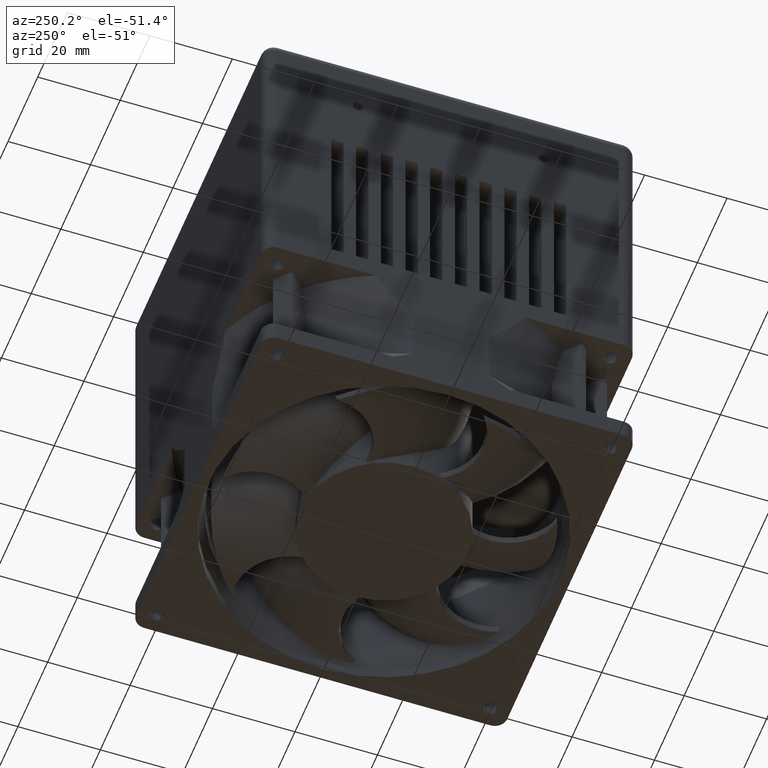
[diagram: clean part render]
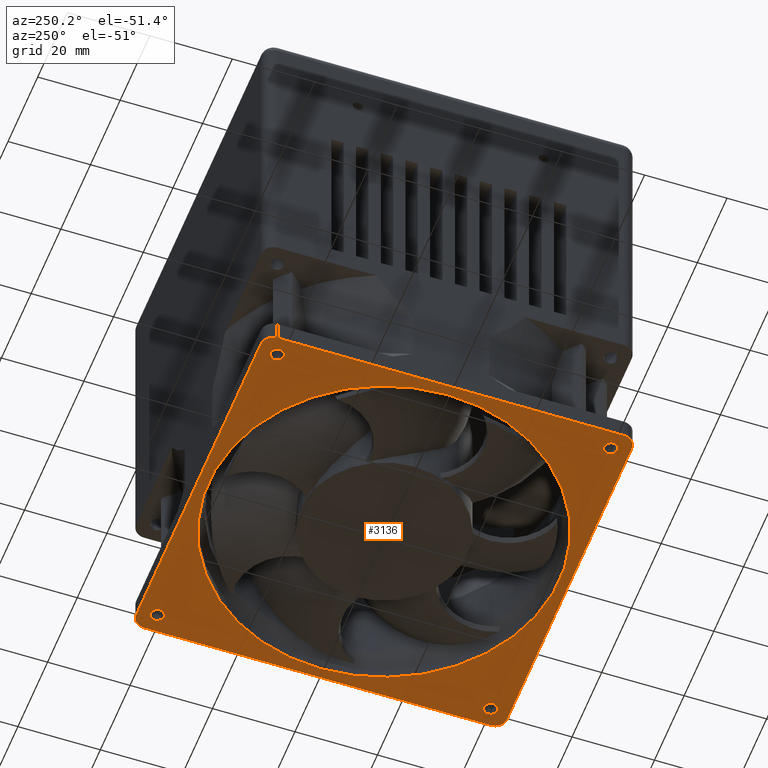
[diagram: same view with one face highlighted and labeled with its STEP entity id]
A machine part, auxiliary view. The second image highlights one B-rep face of the part: STEP entity #3136.
In plain terms, the highlighted planar face has unit normal (0, 0, -1).
Its self-contained STEP definition (entity closure, byte-faithful):
#65 = EDGE_CURVE ( 'NONE', #2853, #3811, #7498, .T. ) ;
#94 = CARTESIAN_POINT ( 'NONE',  ( -44.99999999999998579, -41.99999999999997158, -37.99999999999999289 ) ) ;
#101 = ORIENTED_EDGE ( 'NONE', *, *, #7098, .T. ) ;
#113 = CARTESIAN_POINT ( 'NONE',  ( -42.01564467780267620, 40.41564467780261083, -37.99999999999999289 ) ) ;
#249 = VERTEX_POINT ( 'NONE', #6041 ) ;
#257 = DIRECTION ( 'NONE',  ( -1.000000000000000000, 0.000000000000000000, 0.000000000000000000 ) ) ;
#357 = DIRECTION ( 'NONE',  ( -1.000000000000000000, 0.000000000000000000, 0.000000000000000000 ) ) ;
#387 = DIRECTION ( 'NONE',  ( 0.000000000000000000, 1.000000000000000000, 0.000000000000000000 ) ) ;
#426 = ORIENTED_EDGE ( 'NONE', *, *, #5327, .F. ) ;
#452 = CARTESIAN_POINT ( 'NONE',  ( 42.53170406992085617, 0.000000000000000000, -37.99999999999999289 ) ) ;
#635 = CARTESIAN_POINT ( 'NONE',  ( 40.41564467780034420, 40.41564467780033709, -37.99999999999999289 ) ) ;
#965 = VERTEX_POINT ( 'NONE', #5764 ) ;
#1013 = DIRECTION ( 'NONE',  ( 3.469446951953614189E-18, 0.000000000000000000, -1.000000000000000000 ) ) ;
#1021 = CARTESIAN_POINT ( 'NONE',  ( -44.99999999999998579, -41.99999999999997158, -37.99999999999999289 ) ) ;
#1027 = CIRCLE ( 'NONE', #3929, 1.600000000003189093 ) ;
#1067 = DIRECTION ( 'NONE',  ( -1.000000000000000000, 0.000000000000000000, 0.000000000000000000 ) ) ;
#1080 = AXIS2_PLACEMENT_3D ( 'NONE', #3266, #3344, #2050 ) ;
#1143 = LINE ( 'NONE', #1021, #7741 ) ;
#1200 = CIRCLE ( 'NONE', #5634, 1.599999999999990319 ) ;
#1236 = EDGE_CURVE ( 'NONE', #1762, #249, #7780, .T. ) ;
#1255 = CARTESIAN_POINT ( 'NONE',  ( 44.99999999999999289, -41.99999999999998579, -37.99999999999999289 ) ) ;
#1378 = EDGE_CURVE ( 'NONE', #1999, #7431, #1200, .T. ) ;
#1445 = DIRECTION ( 'NONE',  ( -1.000000000000000000, 0.000000000000000000, 0.000000000000000000 ) ) ;
#1561 = FACE_BOUND ( 'NONE', #5339, .T. ) ;
#1588 = ORIENTED_EDGE ( 'NONE', *, *, #1883, .T. ) ;
#1627 = DIRECTION ( 'NONE',  ( 3.469446951953614189E-18, 0.000000000000000000, -1.000000000000000000 ) ) ;
#1647 = EDGE_CURVE ( 'NONE', #7795, #4630, #6399, .T. ) ;
#1702 = ORIENTED_EDGE ( 'NONE', *, *, #7773, .T. ) ;
#1705 = CARTESIAN_POINT ( 'NONE',  ( -41.99999999999998579, 41.99999999999998579, -37.99999999999999289 ) ) ;
#1753 = CARTESIAN_POINT ( 'NONE',  ( 42.01564467779925138, -40.41564467780034420, -37.99999999999999289 ) ) ;
#1761 = DIRECTION ( 'NONE',  ( -1.000000000000000000, 0.000000000000000000, 0.000000000000000000 ) ) ;
#1762 = VERTEX_POINT ( 'NONE', #1753 ) ;
#1880 = AXIS2_PLACEMENT_3D ( 'NONE', #2833, #3978, #2679 ) ;
#1883 = EDGE_CURVE ( 'NONE', #6444, #5177, #5116, .T. ) ;
#1896 = VERTEX_POINT ( 'NONE', #5630 ) ;
#1980 = EDGE_CURVE ( 'NONE', #4630, #7795, #3458, .T. ) ;
#1999 = VERTEX_POINT ( 'NONE', #4592 ) ;
#2013 = DIRECTION ( 'NONE',  ( -1.000000000000000000, 0.000000000000000000, 0.000000000000000000 ) ) ;
#2050 = DIRECTION ( 'NONE',  ( -1.000000000000000000, 0.000000000000000000, 0.000000000000000000 ) ) ;
#2065 = ORIENTED_EDGE ( 'NONE', *, *, #5946, .F. ) ;
#2072 = CARTESIAN_POINT ( 'NONE',  ( 44.99999999999999289, 41.99999999999995737, -37.99999999999999289 ) ) ;
#2122 = FACE_OUTER_BOUND ( 'NONE', #3025, .T. ) ;
#2192 = CARTESIAN_POINT ( 'NONE',  ( 40.41564467779806336, -40.41564467780034420, -37.99999999999999289 ) ) ;
#2267 = AXIS2_PLACEMENT_3D ( 'NONE', #6406, #3374, #1445 ) ;
#2465 = AXIS2_PLACEMENT_3D ( 'NONE', #4475, #1013, #7048 ) ;
#2610 = CARTESIAN_POINT ( 'NONE',  ( 41.99999999999998579, -44.99999999999998579, -37.99999999999999289 ) ) ;
#2633 = ORIENTED_EDGE ( 'NONE', *, *, #65, .T. ) ;
#2662 = CARTESIAN_POINT ( 'NONE',  ( -40.41564467780261083, -40.41564467779805625, -37.99999999999999289 ) ) ;
#2675 = VECTOR ( 'NONE', #5698, 1000.000000000000000 ) ;
#2679 = DIRECTION ( 'NONE',  ( -1.000000000000000000, 0.000000000000000000, 0.000000000000000000 ) ) ;
#2789 = CARTESIAN_POINT ( 'NONE',  ( -42.01564467780580259, -40.41564467779805625, -37.99999999999999289 ) ) ;
#2796 = EDGE_CURVE ( 'NONE', #5177, #6444, #4498, .T. ) ;
#2833 = CARTESIAN_POINT ( 'NONE',  ( 40.41564467779806336, -40.41564467780034420, -37.99999999999999289 ) ) ;
#2844 = DIRECTION ( 'NONE',  ( 3.469446951953614189E-18, 0.000000000000000000, -1.000000000000000000 ) ) ;
#2853 = VERTEX_POINT ( 'NONE', #4136 ) ;
#2900 = ORIENTED_EDGE ( 'NONE', *, *, #2796, .T. ) ;
#2944 = CIRCLE ( 'NONE', #3709, 1.599999999999990319 ) ;
#3025 = EDGE_LOOP ( 'NONE', ( #7696, #101, #1702, #4298, #4562, #4318, #5021, #2633 ) ) ;
#3050 = DIRECTION ( 'NONE',  ( -1.000000000000000000, 0.000000000000000000, 0.000000000000000000 ) ) ;
#3056 = AXIS2_PLACEMENT_3D ( 'NONE', #6780, #6928, #257 ) ;
#3136 = ADVANCED_FACE ( 'NONE', ( #1561, #6212, #4505, #2122, #5026, #3293 ), #7548, .T. ) ;
#3214 = AXIS2_PLACEMENT_3D ( 'NONE', #2192, #7778, #1761 ) ;
#3219 = ORIENTED_EDGE ( 'NONE', *, *, #1647, .F. ) ;
#3224 = CARTESIAN_POINT ( 'NONE',  ( 41.99999999999998579, -41.99999999999998579, -37.99999999999999289 ) ) ;
#3266 = CARTESIAN_POINT ( 'NONE',  ( 0.000000000000000000, 0.000000000000000000, -37.99999999999999289 ) ) ;
#3267 = CARTESIAN_POINT ( 'NONE',  ( -41.99999999999998579, 44.99999999999998579, -37.99999999999999289 ) ) ;
#3293 = FACE_BOUND ( 'NONE', #3968, .T. ) ;
#3325 = DIRECTION ( 'NONE',  ( 0.000000000000000000, -1.000000000000000000, 0.000000000000000000 ) ) ;
#3344 = DIRECTION ( 'NONE',  ( -3.469446951953614189E-18, -0.000000000000000000, 1.000000000000000000 ) ) ;
#3374 = DIRECTION ( 'NONE',  ( 3.469446951953614189E-18, 0.000000000000000000, -1.000000000000000000 ) ) ;
#3458 = CIRCLE ( 'NONE', #2465, 1.600000000002342659 ) ;
#3509 = EDGE_CURVE ( 'NONE', #5235, #7589, #1143, .T. ) ;
#3613 = EDGE_LOOP ( 'NONE', ( #5325, #3219 ) ) ;
#3709 = AXIS2_PLACEMENT_3D ( 'NONE', #5795, #3842, #357 ) ;
#3811 = VERTEX_POINT ( 'NONE', #1255 ) ;
#3842 = DIRECTION ( 'NONE',  ( 3.469446951953614189E-18, 0.000000000000000000, -1.000000000000000000 ) ) ;
#3882 = CIRCLE ( 'NONE', #6183, 2.999999999999995559 ) ;
#3923 = DIRECTION ( 'NONE',  ( -1.000000000000000000, 0.000000000000000000, -3.469446951953614189E-18 ) ) ;
#3929 = AXIS2_PLACEMENT_3D ( 'NONE', #7645, #1627, #6463 ) ;
#3968 = EDGE_LOOP ( 'NONE', ( #4008, #5429 ) ) ;
#3978 = DIRECTION ( 'NONE',  ( 3.469446951953614189E-18, 0.000000000000000000, -1.000000000000000000 ) ) ;
#4008 = ORIENTED_EDGE ( 'NONE', *, *, #1236, .F. ) ;
#4136 = CARTESIAN_POINT ( 'NONE',  ( 44.99999999999999289, 41.99999999999995737, -37.99999999999999289 ) ) ;
#4298 = ORIENTED_EDGE ( 'NONE', *, *, #3509, .T. ) ;
#4318 = ORIENTED_EDGE ( 'NONE', *, *, #7184, .T. ) ;
#4353 = DIRECTION ( 'NONE',  ( -1.000000000000000000, 0.000000000000000000, 0.000000000000000000 ) ) ;
#4419 = VERTEX_POINT ( 'NONE', #6779 ) ;
#4429 = EDGE_CURVE ( 'NONE', #3811, #1896, #3882, .T. ) ;
#4475 = CARTESIAN_POINT ( 'NONE',  ( -40.41564467780032999, 40.41564467780261083, -37.99999999999999289 ) ) ;
#4489 = DIRECTION ( 'NONE',  ( 3.469446951953614189E-18, 0.000000000000000000, -1.000000000000000000 ) ) ;
#4498 = CIRCLE ( 'NONE', #1080, 42.53170406992085617 ) ;
#4505 = FACE_BOUND ( 'NONE', #7433, .T. ) ;
#4562 = ORIENTED_EDGE ( 'NONE', *, *, #5854, .T. ) ;
#4567 = CARTESIAN_POINT ( 'NONE',  ( -42.53170406992085617, 5.208631525151103265E-15, -37.99999999999999289 ) ) ;
#4592 = CARTESIAN_POINT ( 'NONE',  ( 42.01564467780033141, 40.41564467780033709, -37.99999999999999289 ) ) ;
#4599 = EDGE_CURVE ( 'NONE', #249, #1762, #6699, .T. ) ;
#4630 = VERTEX_POINT ( 'NONE', #5776 ) ;
#4652 = CARTESIAN_POINT ( 'NONE',  ( -40.41564467780032999, 40.41564467780261083, -37.99999999999999289 ) ) ;
#4653 = VERTEX_POINT ( 'NONE', #2789 ) ;
#5021 = ORIENTED_EDGE ( 'NONE', *, *, #5039, .T. ) ;
#5026 = FACE_BOUND ( 'NONE', #3613, .T. ) ;
#5039 = EDGE_CURVE ( 'NONE', #7232, #2853, #7690, .T. ) ;
#5054 = DIRECTION ( 'NONE',  ( -1.000000000000000000, 0.000000000000000000, 0.000000000000000000 ) ) ;
#5073 = CARTESIAN_POINT ( 'NONE',  ( 0.000000000000000000, 0.000000000000000000, -37.99999999999999289 ) ) ;
#5116 = CIRCLE ( 'NONE', #7393, 42.53170406992085617 ) ;
#5177 = VERTEX_POINT ( 'NONE', #452 ) ;
#5235 = VERTEX_POINT ( 'NONE', #94 ) ;
#5323 = EDGE_CURVE ( 'NONE', #4653, #4419, #7073, .T. ) ;
#5325 = ORIENTED_EDGE ( 'NONE', *, *, #1980, .F. ) ;
#5327 = EDGE_CURVE ( 'NONE', #7431, #1999, #2944, .T. ) ;
#5339 = EDGE_LOOP ( 'NONE', ( #2900, #1588 ) ) ;
#5395 = AXIS2_PLACEMENT_3D ( 'NONE', #3224, #6953, #3923 ) ;
#5404 = DIRECTION ( 'NONE',  ( 3.469446951953614189E-18, 0.000000000000000000, -1.000000000000000000 ) ) ;
#5429 = ORIENTED_EDGE ( 'NONE', *, *, #4599, .F. ) ;
#5475 = CIRCLE ( 'NONE', #3056, 3.000000000000002665 ) ;
#5515 = AXIS2_PLACEMENT_3D ( 'NONE', #4652, #6389, #7695 ) ;
#5630 = CARTESIAN_POINT ( 'NONE',  ( 41.99999999999998579, -44.99999999999998579, -37.99999999999999289 ) ) ;
#5634 = AXIS2_PLACEMENT_3D ( 'NONE', #635, #5404, #3050 ) ;
#5698 = DIRECTION ( 'NONE',  ( 1.000000000000000000, -8.260587980841942477E-17, 0.000000000000000000 ) ) ;
#5764 = CARTESIAN_POINT ( 'NONE',  ( -41.99999999999997868, -44.99999999999998579, -37.99999999999999289 ) ) ;
#5776 = CARTESIAN_POINT ( 'NONE',  ( -38.81564467779799088, 40.41564467780261083, -37.99999999999999289 ) ) ;
#5795 = CARTESIAN_POINT ( 'NONE',  ( 40.41564467780034420, 40.41564467780033709, -37.99999999999999289 ) ) ;
#5854 = EDGE_CURVE ( 'NONE', #7589, #7194, #7112, .T. ) ;
#5925 = ORIENTED_EDGE ( 'NONE', *, *, #1378, .F. ) ;
#5946 = EDGE_CURVE ( 'NONE', #4419, #4653, #1027, .T. ) ;
#6034 = VECTOR ( 'NONE', #2013, 1000.000000000000000 ) ;
#6041 = CARTESIAN_POINT ( 'NONE',  ( 38.81564467779686822, -40.41564467780034420, -37.99999999999999289 ) ) ;
#6183 = AXIS2_PLACEMENT_3D ( 'NONE', #6703, #6259, #4353 ) ;
#6184 = CARTESIAN_POINT ( 'NONE',  ( -41.99999999999998579, 44.99999999999998579, -37.99999999999999289 ) ) ;
#6212 = FACE_BOUND ( 'NONE', #6431, .T. ) ;
#6259 = DIRECTION ( 'NONE',  ( 3.469446951953614189E-18, 0.000000000000000000, -1.000000000000000000 ) ) ;
#6302 = LINE ( 'NONE', #3267, #2675 ) ;
#6336 = LINE ( 'NONE', #2610, #6034 ) ;
#6339 = DIRECTION ( 'NONE',  ( -1.000000000000000000, 0.000000000000000000, 0.000000000000000000 ) ) ;
#6389 = DIRECTION ( 'NONE',  ( 3.469446951953614189E-18, 0.000000000000000000, -1.000000000000000000 ) ) ;
#6399 = CIRCLE ( 'NONE', #5515, 1.600000000002342659 ) ;
#6406 = CARTESIAN_POINT ( 'NONE',  ( 41.99999999999998579, 41.99999999999997158, -37.99999999999999289 ) ) ;
#6422 = CARTESIAN_POINT ( 'NONE',  ( -44.99999999999998579, 41.99999999999998579, -37.99999999999999289 ) ) ;
#6431 = EDGE_LOOP ( 'NONE', ( #2065, #6457 ) ) ;
#6444 = VERTEX_POINT ( 'NONE', #4567 ) ;
#6457 = ORIENTED_EDGE ( 'NONE', *, *, #5323, .F. ) ;
#6463 = DIRECTION ( 'NONE',  ( -1.000000000000000000, 0.000000000000000000, 0.000000000000000000 ) ) ;
#6617 = AXIS2_PLACEMENT_3D ( 'NONE', #1705, #2844, #1067 ) ;
#6699 = CIRCLE ( 'NONE', #1880, 1.600000000001190692 ) ;
#6703 = CARTESIAN_POINT ( 'NONE',  ( 41.99999999999998579, -41.99999999999998579, -37.99999999999999289 ) ) ;
#6758 = AXIS2_PLACEMENT_3D ( 'NONE', #2662, #4489, #5054 ) ;
#6779 = CARTESIAN_POINT ( 'NONE',  ( -38.81564467779942618, -40.41564467779805625, -37.99999999999999289 ) ) ;
#6780 = CARTESIAN_POINT ( 'NONE',  ( -41.99999999999997868, -41.99999999999997158, -37.99999999999999289 ) ) ;
#6928 = DIRECTION ( 'NONE',  ( 3.469446951953614189E-18, 0.000000000000000000, -1.000000000000000000 ) ) ;
#6953 = DIRECTION ( 'NONE',  ( 3.469446951953614189E-18, 0.000000000000000000, -1.000000000000000000 ) ) ;
#7048 = DIRECTION ( 'NONE',  ( -1.000000000000000000, 0.000000000000000000, 0.000000000000000000 ) ) ;
#7073 = CIRCLE ( 'NONE', #6758, 1.600000000003189093 ) ;
#7098 = EDGE_CURVE ( 'NONE', #1896, #965, #6336, .T. ) ;
#7112 = CIRCLE ( 'NONE', #6617, 2.999999999999995559 ) ;
#7184 = EDGE_CURVE ( 'NONE', #7194, #7232, #6302, .T. ) ;
#7194 = VERTEX_POINT ( 'NONE', #6184 ) ;
#7232 = VERTEX_POINT ( 'NONE', #7594 ) ;
#7356 = CARTESIAN_POINT ( 'NONE',  ( 38.81564467780035699, 40.41564467780033709, -37.99999999999999289 ) ) ;
#7367 = DIRECTION ( 'NONE',  ( -3.469446951953614189E-18, -0.000000000000000000, 1.000000000000000000 ) ) ;
#7380 = VECTOR ( 'NONE', #3325, 1000.000000000000000 ) ;
#7393 = AXIS2_PLACEMENT_3D ( 'NONE', #5073, #7367, #6339 ) ;
#7431 = VERTEX_POINT ( 'NONE', #7356 ) ;
#7433 = EDGE_LOOP ( 'NONE', ( #5925, #426 ) ) ;
#7498 = LINE ( 'NONE', #2072, #7380 ) ;
#7548 = PLANE ( 'NONE',  #5395 ) ;
#7589 = VERTEX_POINT ( 'NONE', #6422 ) ;
#7594 = CARTESIAN_POINT ( 'NONE',  ( 41.99999999999996447, 44.99999999999997868, -37.99999999999999289 ) ) ;
#7645 = CARTESIAN_POINT ( 'NONE',  ( -40.41564467780261083, -40.41564467779805625, -37.99999999999999289 ) ) ;
#7690 = CIRCLE ( 'NONE', #2267, 3.000000000000002665 ) ;
#7695 = DIRECTION ( 'NONE',  ( -1.000000000000000000, 0.000000000000000000, 0.000000000000000000 ) ) ;
#7696 = ORIENTED_EDGE ( 'NONE', *, *, #4429, .T. ) ;
#7741 = VECTOR ( 'NONE', #387, 1000.000000000000000 ) ;
#7773 = EDGE_CURVE ( 'NONE', #965, #5235, #5475, .T. ) ;
#7778 = DIRECTION ( 'NONE',  ( 3.469446951953614189E-18, 0.000000000000000000, -1.000000000000000000 ) ) ;
#7780 = CIRCLE ( 'NONE', #3214, 1.600000000001190692 ) ;
#7795 = VERTEX_POINT ( 'NONE', #113 ) ;